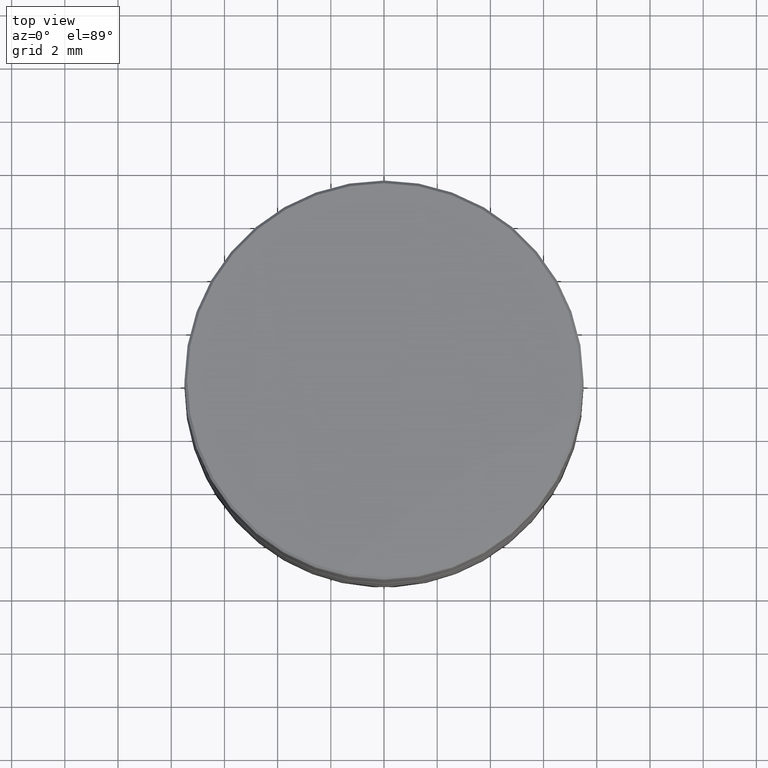
[diagram: clean part render]
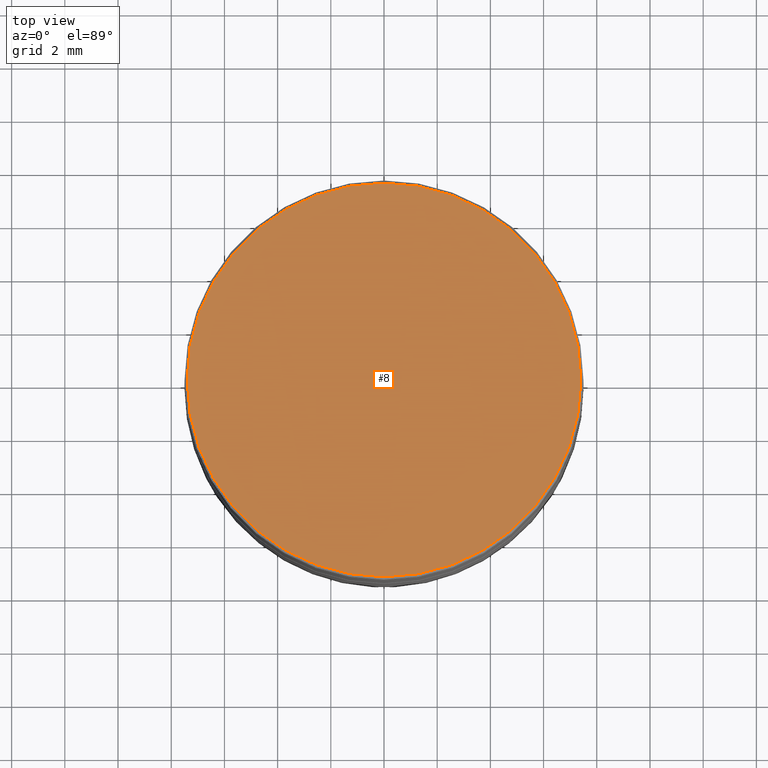
[diagram: same view with one face highlighted and labeled with its STEP entity id]
A machine part, top view. The second image highlights one B-rep face of the part: STEP entity #8.
In plain terms, the highlighted planar face has unit normal (0, -0, 1).
Its self-contained STEP definition (entity closure, byte-faithful):
#8 = ADVANCED_FACE ( 'NONE', ( #700 ), #72, .T. ) ;
#72 = PLANE ( 'NONE',  #291 ) ;
#92 = CARTESIAN_POINT ( 'NONE',  ( 7.399999999999994138, 9.123618653647777215E-16, 0.000000000000000000 ) ) ;
#125 = DIRECTION ( 'NONE',  ( -0.000000000000000000, -0.000000000000000000, 1.000000000000000000 ) ) ;
#131 = AXIS2_PLACEMENT_3D ( 'NONE', #1626, #243, #483 ) ;
#218 = AXIS2_PLACEMENT_3D ( 'NONE', #274, #125, #280 ) ;
#228 = DIRECTION ( 'NONE',  ( 1.000000000000000000, 0.000000000000000000, 0.000000000000000000 ) ) ;
#243 = DIRECTION ( 'NONE',  ( -0.000000000000000000, -0.000000000000000000, 1.000000000000000000 ) ) ;
#274 = CARTESIAN_POINT ( 'NONE',  ( 0.000000000000000000, 0.000000000000000000, 0.000000000000000000 ) ) ;
#280 = DIRECTION ( 'NONE',  ( 1.000000000000000000, 0.000000000000000000, 0.000000000000000000 ) ) ;
#291 = AXIS2_PLACEMENT_3D ( 'NONE', #570, #1109, #228 ) ;
#483 = DIRECTION ( 'NONE',  ( 1.000000000000000000, 0.000000000000000000, 0.000000000000000000 ) ) ;
#570 = CARTESIAN_POINT ( 'NONE',  ( 0.000000000000000000, 0.000000000000000000, 0.000000000000000000 ) ) ;
#572 = ORIENTED_EDGE ( 'NONE', *, *, #934, .T. ) ;
#700 = FACE_OUTER_BOUND ( 'NONE', #794, .T. ) ;
#794 = EDGE_LOOP ( 'NONE', ( #572, #1254 ) ) ;
#852 = CIRCLE ( 'NONE', #218, 7.399999999999994138 ) ;
#934 = EDGE_CURVE ( 'NONE', #1056, #1356, #1137, .T. ) ;
#1056 = VERTEX_POINT ( 'NONE', #1290 ) ;
#1097 = EDGE_CURVE ( 'NONE', #1356, #1056, #852, .T. ) ;
#1109 = DIRECTION ( 'NONE',  ( 0.000000000000000000, -0.000000000000000000, 1.000000000000000000 ) ) ;
#1137 = CIRCLE ( 'NONE', #131, 7.399999999999994138 ) ;
#1254 = ORIENTED_EDGE ( 'NONE', *, *, #1097, .T. ) ;
#1290 = CARTESIAN_POINT ( 'NONE',  ( -7.399999999999994138, 0.000000000000000000, 0.000000000000000000 ) ) ;
#1356 = VERTEX_POINT ( 'NONE', #92 ) ;
#1626 = CARTESIAN_POINT ( 'NONE',  ( 0.000000000000000000, 0.000000000000000000, 0.000000000000000000 ) ) ;